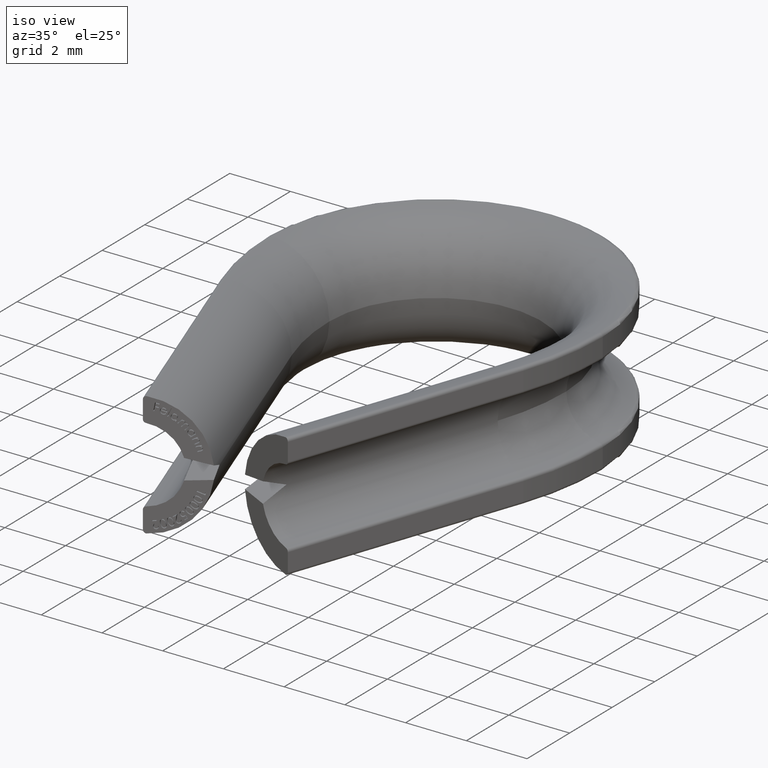
[diagram: clean part render]
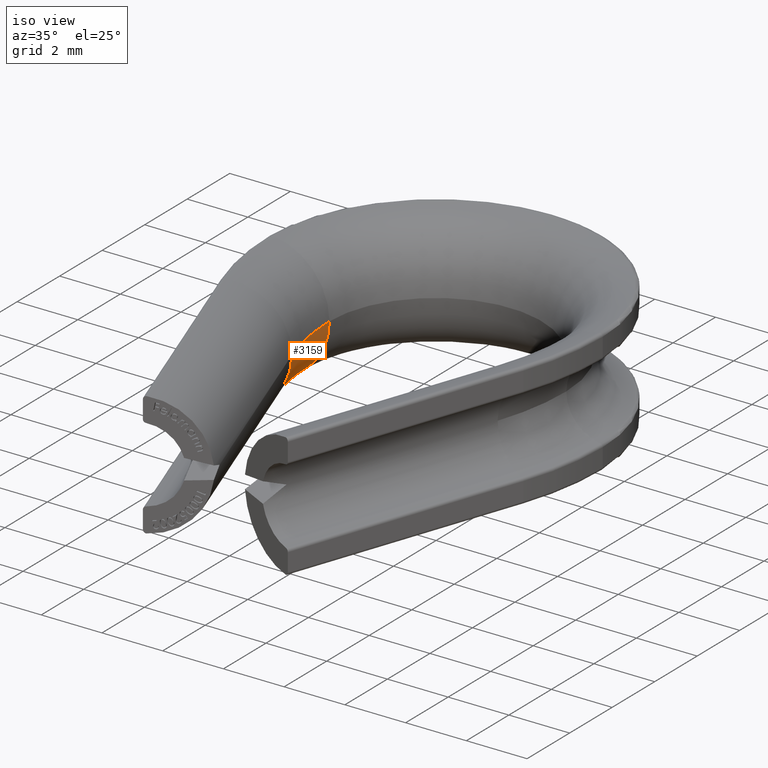
[diagram: same view with one face highlighted and labeled with its STEP entity id]
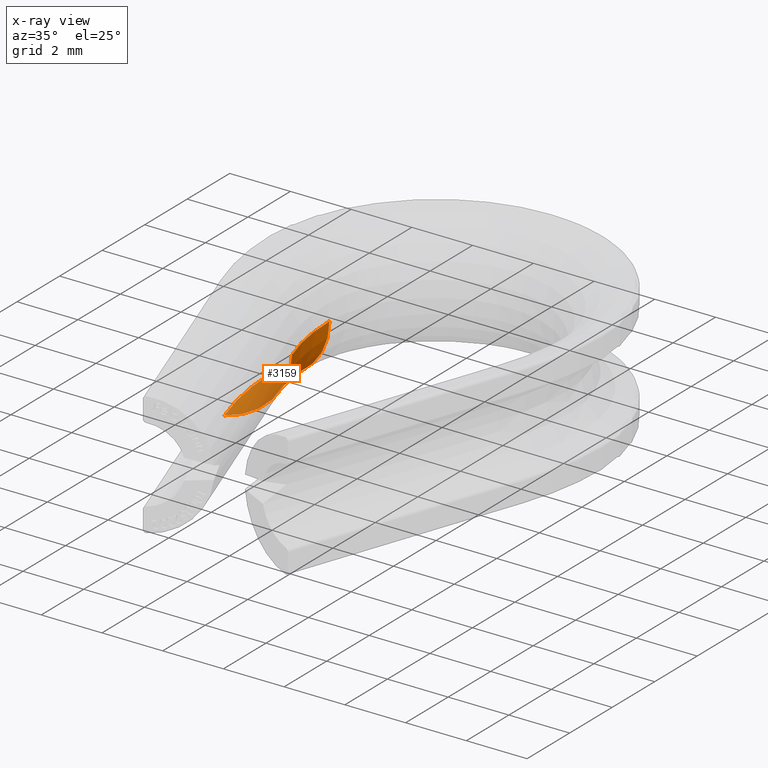
[diagram: x-ray of the same camera — body ghosted, the highlighted face saturated]
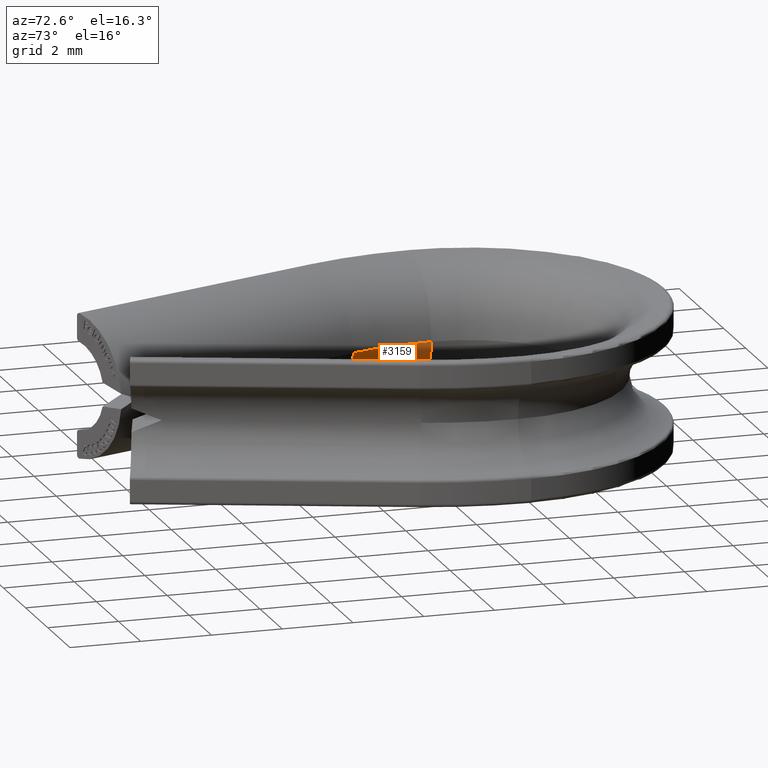
[diagram: same view with one face highlighted and labeled with its STEP entity id]
A machine part, iso view. The second image highlights one B-rep face of the part: STEP entity #3159.
The next image is the same camera in x-ray: the body ghosted, the highlighted face saturated — about 52% of this face is hidden behind the body in this view.
A second angle (auxiliary view) of the same face is appended — the face is thin or edge-on in the first view.
In plain terms, the highlighted toroidal blend (fillet) surface has major radius 9.05 mm and minor (blend) radius 2.05 mm.
Its self-contained STEP definition (entity closure, byte-faithful):
#1185 = DIRECTION ( 'NONE',  ( -0.3327819343494358200, 0.9430038092026181700, 0.0000000000000000000 ) ) ;
#1240 = CARTESIAN_POINT ( 'NONE',  ( -5.034184473283693800, 6.688323494137608600, 0.0000000000000000000 ) ) ;
#1281 = AXIS2_PLACEMENT_3D ( 'NONE', #1781, #12409, #4107 ) ;
#1445 = EDGE_CURVE ( 'NONE', #9382, #9570, #7503, .T. ) ;
#1560 = ORIENTED_EDGE ( 'NONE', *, *, #9085, .T. ) ;
#1741 = AXIS2_PLACEMENT_3D ( 'NONE', #1240, #1185, #7176 ) ;
#1781 = CARTESIAN_POINT ( 'NONE',  ( 3.499999999999999600, 9.700000000000001100, -2.043925912575236500 ) ) ;
#1870 = ORIENTED_EDGE ( 'NONE', *, *, #14324, .T. ) ;
#2623 = DIRECTION ( 'NONE',  ( -0.0000000000000000000, 0.0000000000000000000, 1.000000000000000000 ) ) ;
#3159 = ADVANCED_FACE ( 'NONE', ( #14687 ), #13953, .T. ) ;
#3817 = DIRECTION ( 'NONE',  ( 1.000000000000000000, 0.0000000000000000000, 0.0000000000000000000 ) ) ;
#3886 = AXIS2_PLACEMENT_3D ( 'NONE', #8452, #10987, #12013 ) ;
#4107 = DIRECTION ( 'NONE',  ( 1.000000000000000000, 0.0000000000000000000, 0.0000000000000000000 ) ) ;
#4211 = CIRCLE ( 'NONE', #1741, 2.050000000000000300 ) ;
#4593 = EDGE_LOOP ( 'NONE', ( #13500, #1560, #1870, #10556 ) ) ;
#4846 = CARTESIAN_POINT ( 'NONE',  ( -3.499999999999999100, 9.700000000000001100, -2.510525938252074200E-016 ) ) ;
#5363 = AXIS2_PLACEMENT_3D ( 'NONE', #14347, #2623, #3817 ) ;
#5687 = DIRECTION ( 'NONE',  ( 0.0000000000000000000, 0.0000000000000000000, -1.000000000000000000 ) ) ;
#6389 = CARTESIAN_POINT ( 'NONE',  ( -5.392307692308924600, 9.700000000000001100, -2.043925912574977600 ) ) ;
#6732 = CARTESIAN_POINT ( 'NONE',  ( -3.101026664418326600, 7.370526459553953000, 0.0000000000000000000 ) ) ;
#7176 = DIRECTION ( 'NONE',  ( 0.0000000000000000000, 0.0000000000000000000, -1.000000000000000000 ) ) ;
#7202 = CIRCLE ( 'NONE', #3886, 6.999999999999999100 ) ;
#7503 = CIRCLE ( 'NONE', #1281, 8.892307692307657200 ) ;
#8441 = VERTEX_POINT ( 'NONE', #6732 ) ;
#8452 = CARTESIAN_POINT ( 'NONE',  ( 3.499999999999999600, 9.700000000000001100, -2.510525938252074200E-016 ) ) ;
#9085 = EDGE_CURVE ( 'NONE', #11484, #8441, #7202, .T. ) ;
#9382 = VERTEX_POINT ( 'NONE', #9478 ) ;
#9478 = CARTESIAN_POINT ( 'NONE',  ( -4.885480026450629500, 6.740800645322515500, -2.043925912575236500 ) ) ;
#9570 = VERTEX_POINT ( 'NONE', #6389 ) ;
#9766 = EDGE_CURVE ( 'NONE', #11484, #9570, #13006, .T. ) ;
#10556 = ORIENTED_EDGE ( 'NONE', *, *, #1445, .T. ) ;
#10987 = DIRECTION ( 'NONE',  ( -0.0000000000000000000, 0.0000000000000000000, 1.000000000000000000 ) ) ;
#11484 = VERTEX_POINT ( 'NONE', #4846 ) ;
#12013 = DIRECTION ( 'NONE',  ( 1.000000000000000000, 0.0000000000000000000, 0.0000000000000000000 ) ) ;
#12409 = DIRECTION ( 'NONE',  ( 0.0000000000000000000, -0.0000000000000000000, -1.000000000000000000 ) ) ;
#12641 = CARTESIAN_POINT ( 'NONE',  ( -5.549999999999998900, 9.700000000000001100, 0.0000000000000000000 ) ) ;
#13006 = CIRCLE ( 'NONE', #14530, 2.050000000000000300 ) ;
#13500 = ORIENTED_EDGE ( 'NONE', *, *, #9766, .F. ) ;
#13796 = DIRECTION ( 'NONE',  ( -1.608122649676636600E-016, 1.000000000000000000, -0.0000000000000000000 ) ) ;
#13953 = TOROIDAL_SURFACE ( 'NONE', #5363, 9.049999999999998900, 2.050000000000000300 ) ;
#14324 = EDGE_CURVE ( 'NONE', #8441, #9382, #4211, .T. ) ;
#14347 = CARTESIAN_POINT ( 'NONE',  ( 3.499999999999999600, 9.700000000000001100, 0.0000000000000000000 ) ) ;
#14530 = AXIS2_PLACEMENT_3D ( 'NONE', #12641, #13796, #5687 ) ;
#14687 = FACE_OUTER_BOUND ( 'NONE', #4593, .T. ) ;